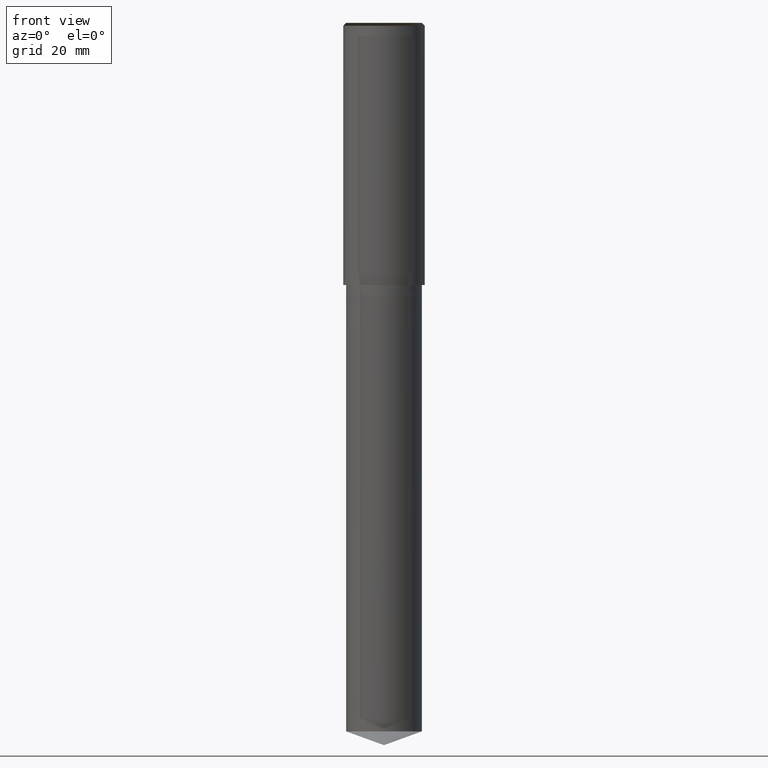
[diagram: clean part render]
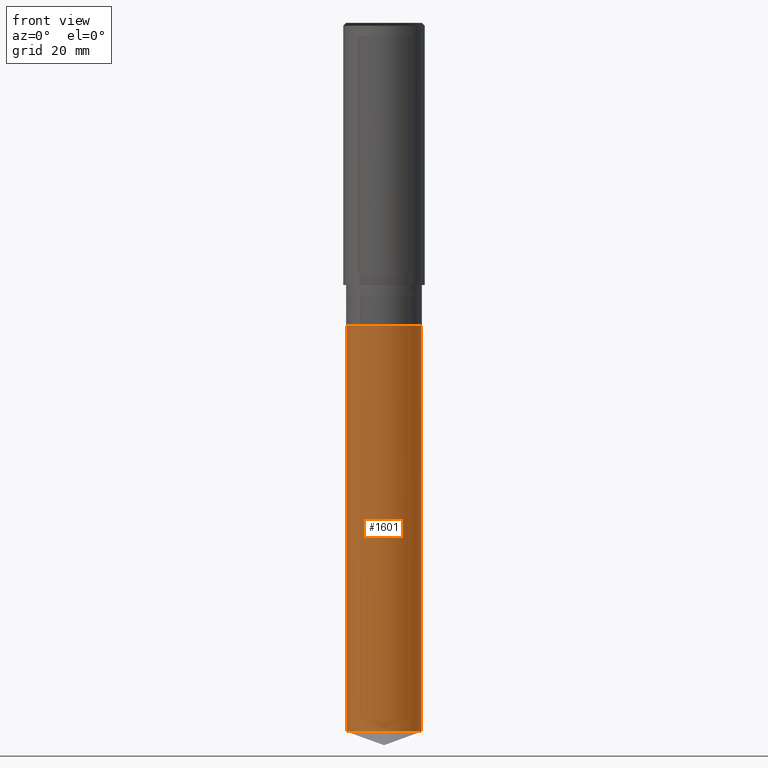
[diagram: same view with one face highlighted and labeled with its STEP entity id]
A machine part, front view. The second image highlights one B-rep face of the part: STEP entity #1601.
In plain terms, the highlighted face is a freeform B-spline surface patch.
Its self-contained STEP definition (entity closure, byte-faithful):
#1451=CARTESIAN_POINT('',(6.5,0.0,-76.63419347727));
#1455=CARTESIAN_POINT('',(-6.5,0.0,-76.63419347727));
#1456=CARTESIAN_POINT('',(6.5,0.0,-7.0));
#1460=CARTESIAN_POINT('',(-6.5,0.0,-7.0));
#1462=CARTESIAN_POINT('',(-6.5,-6.5,-76.63419347727));
#1463=CARTESIAN_POINT('',(0.0,-6.5,-76.63419347727));
#1464=CARTESIAN_POINT('',(6.5,-6.5,-76.63419347727));
#1465=CARTESIAN_POINT('',(-6.5,-6.5,-7.0));
#1466=CARTESIAN_POINT('',(0.0,-6.5,-7.0));
#1467=CARTESIAN_POINT('',(6.5,-6.5,-7.0));
#1582=(
BOUNDED_SURFACE()
B_SPLINE_SURFACE(1,2,(
(#1455,#1462,#1463,#1464,#1451),
(#1460,#1465,#1466,#1467,#1456)
), .UNSPECIFIED.,.F.,.F.,.F.)
B_SPLINE_SURFACE_WITH_KNOTS((2,2),(3,2,3),(
0.0,1.0),(
0.0,0.5,1.0), .UNSPECIFIED.)
GEOMETRIC_REPRESENTATION_ITEM()
RATIONAL_B_SPLINE_SURFACE(((1.0,0.707106781187,1.0,0.707106781187,1.0),
(1.0,0.707106781187,1.0,0.707106781187,1.0)
))
REPRESENTATION_ITEM('')
SURFACE()
);
#1583=(
BOUNDED_CURVE()
B_SPLINE_CURVE(2,(#1451,#1464,#1463,#1462,#1455),.UNSPECIFIED.,.F.,.F.)
B_SPLINE_CURVE_WITH_KNOTS((3,2,3),
(0.0,0.5,1.0),.UNSPECIFIED.)
CURVE()
GEOMETRIC_REPRESENTATION_ITEM()
RATIONAL_B_SPLINE_CURVE((1.0,0.707106781187,1.0,0.707106781187,1.0))
REPRESENTATION_ITEM('')
);
#1584=(
BOUNDED_CURVE()
B_SPLINE_CURVE(1,(#1455,#1460),.UNSPECIFIED.,.F.,.F.)
B_SPLINE_CURVE_WITH_KNOTS((2,2),
(0.0,1.0),.UNSPECIFIED.)
CURVE()
GEOMETRIC_REPRESENTATION_ITEM()
RATIONAL_B_SPLINE_CURVE((1.0,1.0))
REPRESENTATION_ITEM('')
);
#1585=(
BOUNDED_CURVE()
B_SPLINE_CURVE(2,(#1460,#1465,#1466,#1467,#1456),.UNSPECIFIED.,.F.,.F.)
B_SPLINE_CURVE_WITH_KNOTS((3,2,3),
(0.0,0.5,1.0),.UNSPECIFIED.)
CURVE()
GEOMETRIC_REPRESENTATION_ITEM()
RATIONAL_B_SPLINE_CURVE((1.0,0.707106781187,1.0,0.707106781187,1.0))
REPRESENTATION_ITEM('')
);
#1586=(
BOUNDED_CURVE()
B_SPLINE_CURVE(1,(#1456,#1451),.UNSPECIFIED.,.F.,.F.)
B_SPLINE_CURVE_WITH_KNOTS((2,2),
(0.0,1.0),.UNSPECIFIED.)
CURVE()
GEOMETRIC_REPRESENTATION_ITEM()
RATIONAL_B_SPLINE_CURVE((1.0,1.0))
REPRESENTATION_ITEM('')
);
#1587=VERTEX_POINT('',#1451);
#1588=VERTEX_POINT('',#1455);
#1589=VERTEX_POINT('',#1456);
#1590=VERTEX_POINT('',#1460);
#1591=EDGE_CURVE('',#1587,#1588,#1583,.T.);
#1592=EDGE_CURVE('',#1588,#1590,#1584,.T.);
#1593=EDGE_CURVE('',#1590,#1589,#1585,.T.);
#1594=EDGE_CURVE('',#1589,#1587,#1586,.T.);
#1595=ORIENTED_EDGE('',*,*,#1591,.T.);
#1596=ORIENTED_EDGE('',*,*,#1592,.T.);
#1597=ORIENTED_EDGE('',*,*,#1593,.T.);
#1598=ORIENTED_EDGE('',*,*,#1594,.T.);
#1599=EDGE_LOOP('',(#1595,#1596,#1597,#1598));
#1600=FACE_OUTER_BOUND('',#1599,.T.);
#1601=ADVANCED_FACE('',(#1600),#1582,.T.);